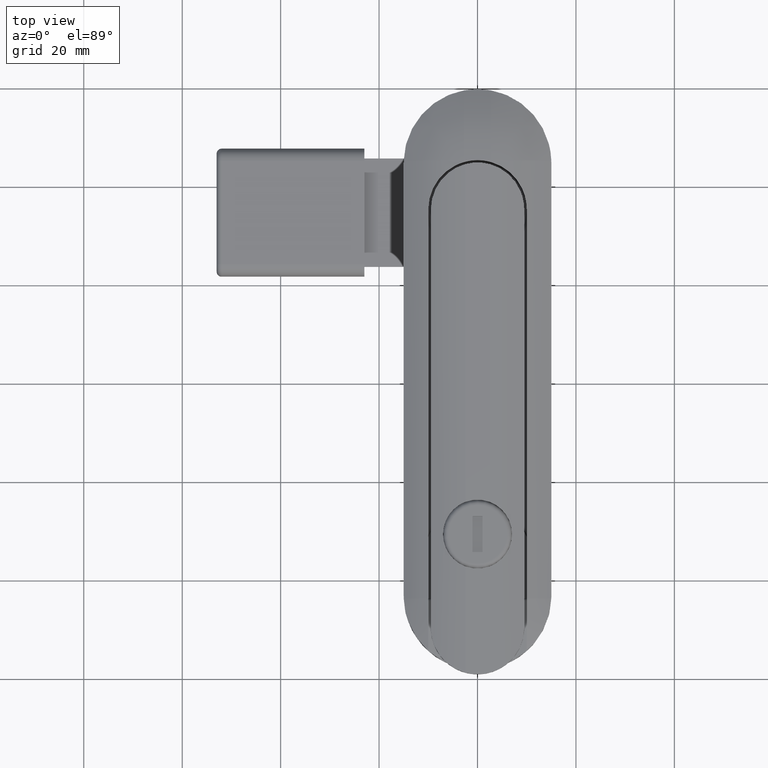
[diagram: clean part render]
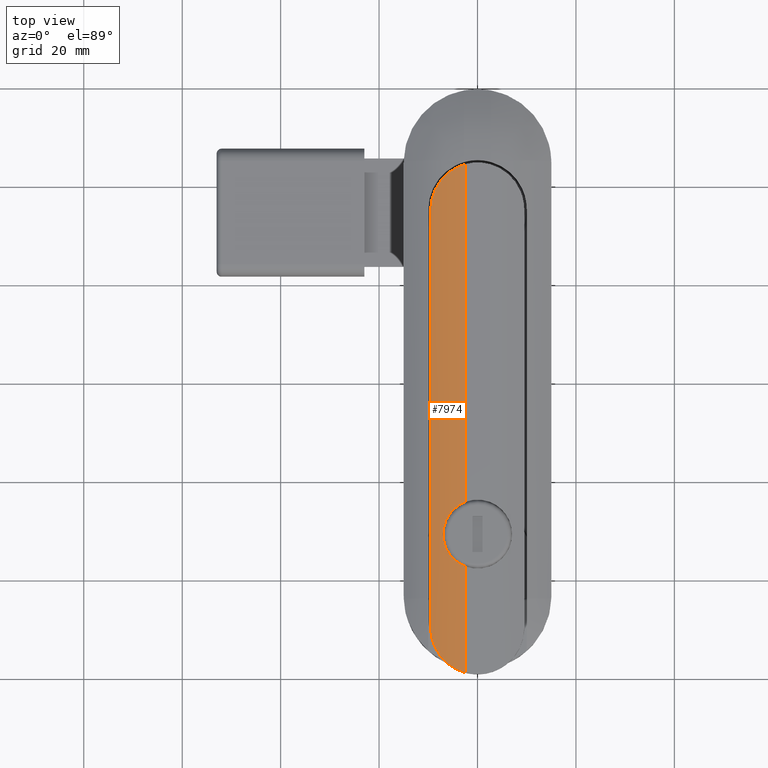
[diagram: same view with one face highlighted and labeled with its STEP entity id]
A machine part, top view. The second image highlights one B-rep face of the part: STEP entity #7974.
In plain terms, the highlighted cylindrical surface (partial cylindrical patch) has radius 30 mm, axis along (-0, -1, -0).
Its self-contained STEP definition (entity closure, byte-faithful):
#279=B_SPLINE_CURVE_WITH_KNOTS('',3,(#12264,#12265,#12266,#12267,#12268,
#12269,#12270,#12271,#12272,#12273),.UNSPECIFIED.,.F.,.F.,(4,2,2,2,4),(2.88444640009668,
3.24511791091131,3.60578942172593,3.96665278461114,4.0821180829345),
 .UNSPECIFIED.);
#282=B_SPLINE_CURVE_WITH_KNOTS('',3,(#12318,#12319,#12320,#12321,#12322,
#12323,#12324,#12325,#12326,#12327,#12328,#12329,#12330,#12331,#12332,#12333,
#12334,#12335),.UNSPECIFIED.,.F.,.F.,(4,2,2,2,2,2,2,2,4),(1.30465991832811,
1.32337238565894,1.58823020456419,1.85307113455258,2.11791206454097,2.38268476148046,
2.64745745841995,2.912383497877,2.93116019888777),.UNSPECIFIED.);
#295=B_SPLINE_CURVE_WITH_KNOTS('',3,(#12975,#12976,#12977,#12978,#12979,
#12980,#12981,#12982,#12983,#12984),.UNSPECIFIED.,.F.,.F.,(4,2,2,2,4),(1.68677471725887,
1.80224001558223,2.16310337846744,2.52377488928206,2.88444640009668),
 .UNSPECIFIED.);
#527=LINE('',#12213,#1119);
#532=LINE('',#12356,#1124);
#623=LINE('',#12997,#1215);
#1119=VECTOR('',#9585,85.);
#1124=VECTOR('',#9628,21.6268029746006);
#1215=VECTOR('',#9969,68.6268029746007);
#2053=FACE_OUTER_BOUND('',#2568,.T.);
#2568=EDGE_LOOP('',(#6041,#6042,#6043,#6044,#6045,#6046));
#3472=VERTEX_POINT('',#12168);
#3484=VERTEX_POINT('',#12211);
#3497=VERTEX_POINT('',#12263);
#3504=VERTEX_POINT('',#12315);
#3505=VERTEX_POINT('',#12317);
#3508=VERTEX_POINT('',#12355);
#4304=EDGE_CURVE('',#3472,#3484,#527,.T.);
#4317=EDGE_CURVE('',#3472,#3497,#279,.T.);
#4325=EDGE_CURVE('',#3505,#3504,#282,.T.);
#4331=EDGE_CURVE('',#3505,#3508,#532,.T.);
#4491=EDGE_CURVE('',#3508,#3484,#295,.T.);
#4494=EDGE_CURVE('',#3497,#3504,#623,.T.);
#6041=ORIENTED_EDGE('',*,*,#4325,.T.);
#6042=ORIENTED_EDGE('',*,*,#4494,.F.);
#6043=ORIENTED_EDGE('',*,*,#4317,.F.);
#6044=ORIENTED_EDGE('',*,*,#4304,.T.);
#6045=ORIENTED_EDGE('',*,*,#4491,.F.);
#6046=ORIENTED_EDGE('',*,*,#4331,.F.);
#7720=CYLINDRICAL_SURFACE('',#8607,30.);
#7974=ADVANCED_FACE('',(#2053),#7720,.T.);
#8607=AXIS2_PLACEMENT_3D('',#12996,#9967,#9968);
#9585=DIRECTION('',(2.48167499622094E-16,-1.,0.));
#9628=DIRECTION('',(0.,-1.,0.));
#9967=DIRECTION('center_axis',(0.,-1.,0.));
#9968=DIRECTION('ref_axis',(-0.324698969505409,0.,0.945817413247465));
#9969=DIRECTION('',(0.,-1.,0.));
#12168=CARTESIAN_POINT('',(-9.50000000000002,42.5,0.));
#12211=CARTESIAN_POINT('',(-9.5,-42.5,0.));
#12213=CARTESIAN_POINT('',(-9.50000000000002,42.5,0.));
#12263=CARTESIAN_POINT('',(-2.5,51.6651513899117,1.5));
#12264=CARTESIAN_POINT('Ctrl Pts',(-9.50000000000002,42.5,-1.30277733045858E-14));
#12265=CARTESIAN_POINT('Ctrl Pts',(-9.50000000000002,43.7022383693821,-1.29109824416929E-14));
#12266=CARTESIAN_POINT('Ctrl Pts',(-9.25799348268187,44.97810960485,0.0864878211488705));
#12267=CARTESIAN_POINT('Ctrl Pts',(-8.28645166679356,47.3152054436777,0.392515615685666));
#12268=CARTESIAN_POINT('Ctrl Pts',(-7.5573295242118,48.3772605263694,0.607003408420909));
#12269=CARTESIAN_POINT('Ctrl Pts',(-5.88076563522012,50.0547013140959,1.00689099883533));
#12270=CARTESIAN_POINT('Ctrl Pts',(-4.81821540617512,50.7848487330634,1.21931695368963));
#12271=CARTESIAN_POINT('Ctrl Pts',(-3.27475676790398,51.4269355624773,1.42114926458507));
#12272=CARTESIAN_POINT('Ctrl Pts',(-2.88998983679004,51.5587729406644,1.46421867195235));
#12273=CARTESIAN_POINT('Ctrl Pts',(-2.5,51.6651513899117,1.5));
#12315=CARTESIAN_POINT('',(-2.5,-16.961651584689,1.5));
#12317=CARTESIAN_POINT('',(-2.5,-30.038348415311,1.5));
#12318=CARTESIAN_POINT('Ctrl Pts',(-2.5,-30.038348415311,1.49999999999999));
#12319=CARTESIAN_POINT('Ctrl Pts',(-2.5615799718818,-30.014802724576,1.49435007539374));
#12320=CARTESIAN_POINT('Ctrl Pts',(-2.62283279159132,-29.9903847349132,
1.48853808601215));
#12321=CARTESIAN_POINT('Ctrl Pts',(-3.545498404373,-29.6073789378563,1.39815727578886));
#12322=CARTESIAN_POINT('Ctrl Pts',(-4.33023303874231,-29.0692618978694,
1.28183870315105));
#12323=CARTESIAN_POINT('Ctrl Pts',(-5.56922239392829,-27.8302725426834,
1.06418115939272));
#12324=CARTESIAN_POINT('Ctrl Pts',(-6.10736233429524,-27.0455304067273,
0.948393467933131));
#12325=CARTESIAN_POINT('Ctrl Pts',(-6.82284035965536,-25.3219511529392,
0.784306559315914));
#12326=CARTESIAN_POINT('Ctrl Pts',(-7.00000000000005,-24.3828030999613,
0.738505042327553));
#12327=CARTESIAN_POINT('Ctrl Pts',(-7.00000000000004,-22.617424343535,0.738505042327553));
#12328=CARTESIAN_POINT('Ctrl Pts',(-6.82293070655224,-21.6785012976551,
0.784282506062039));
#12329=CARTESIAN_POINT('Ctrl Pts',(-6.10778970750513,-19.9552644944961,
0.948298785398808));
#12330=CARTESIAN_POINT('Ctrl Pts',(-5.56989640380469,-19.1706401081154,
1.06404215431429));
#12331=CARTESIAN_POINT('Ctrl Pts',(-4.33114556438487,-17.9314122156516,
1.28169897629652));
#12332=CARTESIAN_POINT('Ctrl Pts',(-3.54629322002458,-17.3930485047429,
1.3980612363878));
#12333=CARTESIAN_POINT('Ctrl Pts',(-2.62325099123792,-17.0097819898806,
1.48849840240017));
#12334=CARTESIAN_POINT('Ctrl Pts',(-2.56179017097968,-16.9852776470578,
1.49433078975559));
#12335=CARTESIAN_POINT('Ctrl Pts',(-2.5,-16.961651584689,1.49999999999999));
#12355=CARTESIAN_POINT('',(-2.5,-51.6651513899117,1.5));
#12356=CARTESIAN_POINT('',(-2.5,52.,1.5));
#12975=CARTESIAN_POINT('Ctrl Pts',(-2.5,-51.6651513899117,1.5));
#12976=CARTESIAN_POINT('Ctrl Pts',(-2.88998983679003,-51.5587729406644,
1.46421867195235));
#12977=CARTESIAN_POINT('Ctrl Pts',(-3.27475676790395,-51.4269355624773,
1.42114926458507));
#12978=CARTESIAN_POINT('Ctrl Pts',(-4.81821540617509,-50.7848487330634,
1.21931695368964));
#12979=CARTESIAN_POINT('Ctrl Pts',(-5.88076563522009,-50.054701314096,1.00689099883534));
#12980=CARTESIAN_POINT('Ctrl Pts',(-7.55732952421177,-48.3772605263694,
0.607003408420918));
#12981=CARTESIAN_POINT('Ctrl Pts',(-8.28645166679352,-47.3152054436777,
0.392515615685679));
#12982=CARTESIAN_POINT('Ctrl Pts',(-9.25799348268185,-44.97810960485,0.0864878211488814));
#12983=CARTESIAN_POINT('Ctrl Pts',(-9.49999999999999,-43.7022383693821,
-4.33548303839188E-15));
#12984=CARTESIAN_POINT('Ctrl Pts',(-9.49999999999999,-42.5,-4.30211422042248E-15));
#12996=CARTESIAN_POINT('Origin',(0.240969085162283,52.,-28.3745223974239));
#12997=CARTESIAN_POINT('',(-2.5,52.,1.5));